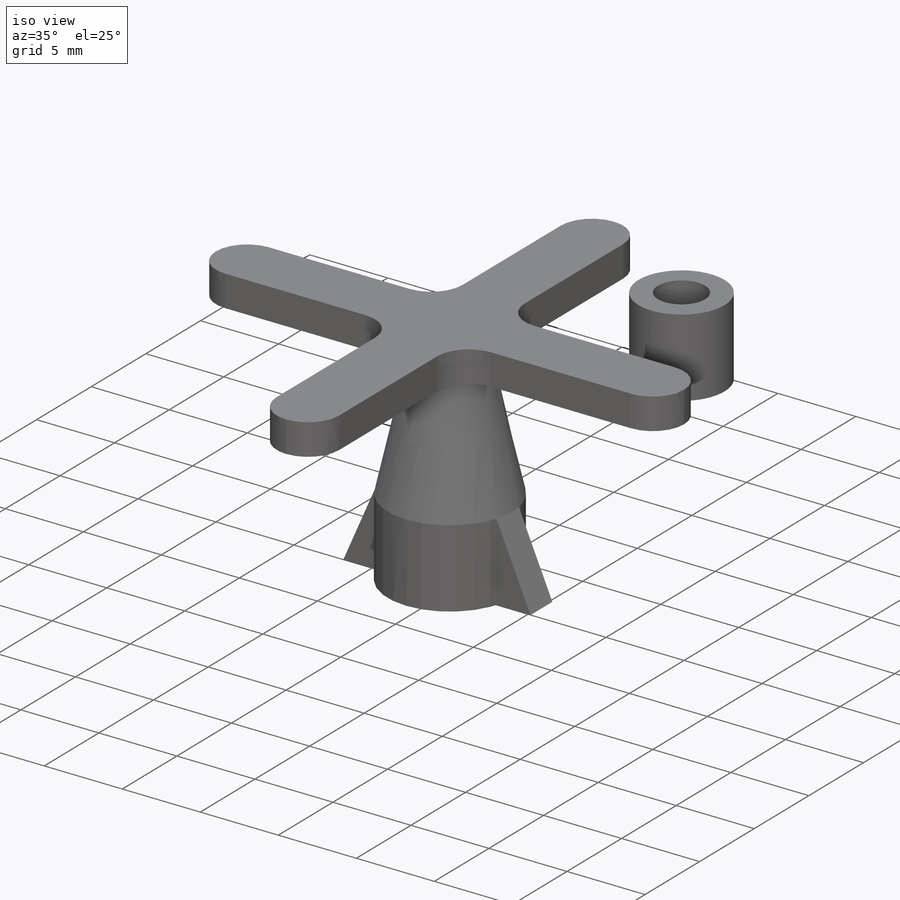
[diagram: iso view]
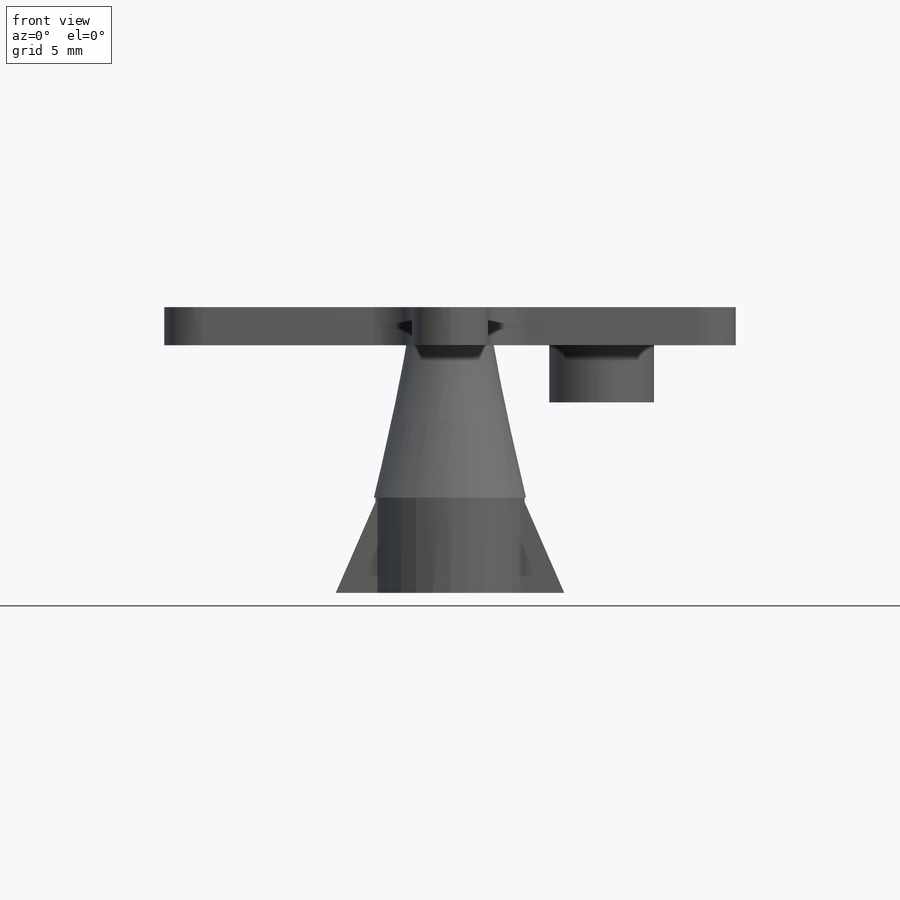
[diagram: front view]
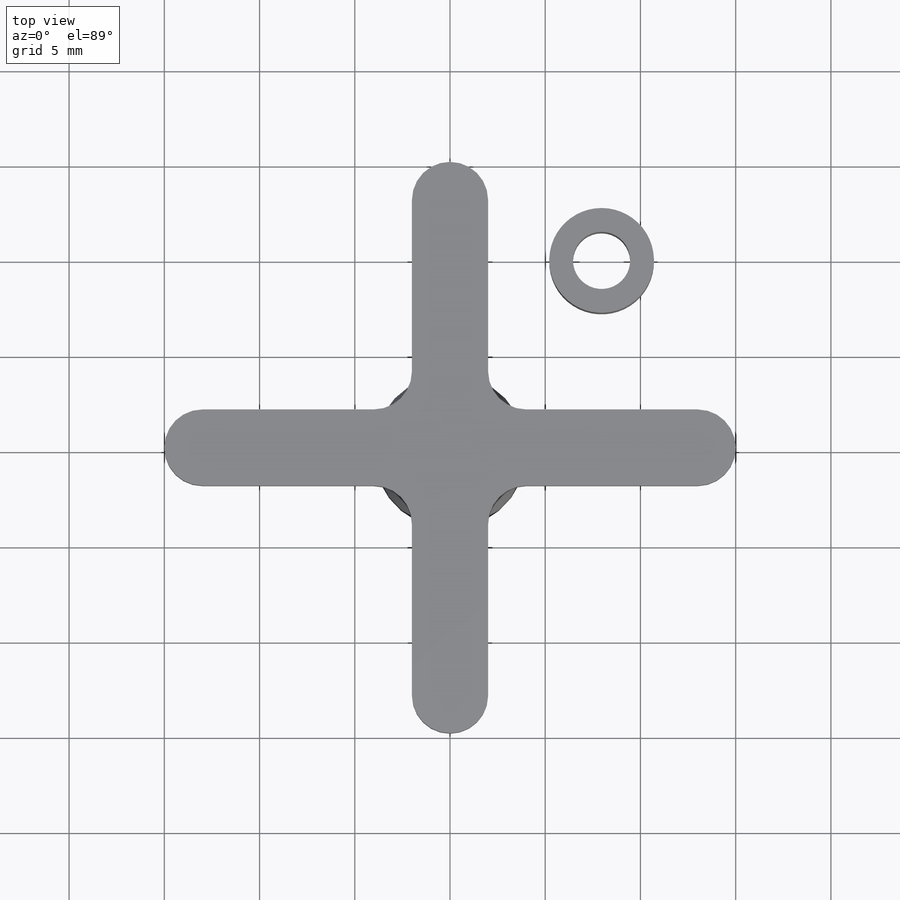
[diagram: top view]
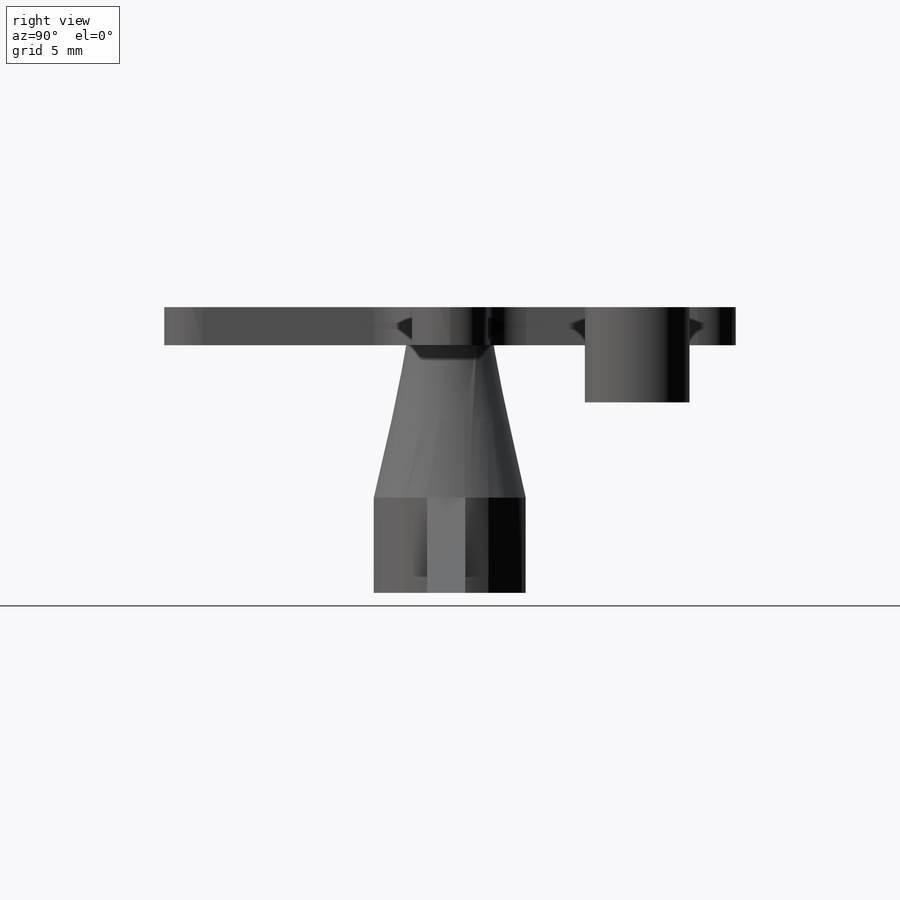
[diagram: right view]
SOLIDWORKS PART (.sldprt)
format: sldprt  version: not decoded by parser v0  size: 532,480 bytes
history: native  units: mm
features: sketch x28, extrude x9, cut_extrude x8, sweep x4, plane x3, fillet x3, material x1 (+9 scaffold rows collapsed)
feature tree (65):
  scaffold x9  (default folders/planes/origin — collapsed)
  material  "材质 <未指定>"
  plane  "前视基准面"
  plane  "上视基准面"
  plane  "右视基准面"
  sketch  "草图1"  dims[D1=4.0mm D2=4.0mm]
  extrude  "凸台-拉伸2"  Depth=10mm
  sketch  "草图2"  dims[D1=8.0mm]
  sketch  "草图3"  dims[D1=5.1mm]
  sketch  "草图4"  dims[D1=2.0mm]
  cut_extrude  "切除-拉伸1"  Depth=1.5mm
  sketch  "草图5"
  cut_extrude  "切除-拉伸2"  Depth=1.5mm
  sketch  "草图6"  dims[D1=2.0mm]
  sketch  "草图7"  dims[D1=5.1mm]
  sketch  "草图8"  dims[D1=1.5mm D2=2.55mm]
  sweep  "切除-扫描1"
  sketch  "草图9"
  extrude  "凸台-拉伸3"  Depth=5mm
  sketch  "草图11"  dims[c1.D1=6.0mm c1.D2=2.0mm c1.D3=2.55mm c1.D4=2.55mm c1.D5=6.0mm c1.D6=6.1187mm c2.D5=~0.800629mm c2.D6=2.0mm]
  extrude  "凸台-拉伸4"  Depth=5mm
  sketch  "草图13"  dims[D1=5.1mm D2=2.72mm]
  extrude  "凸台-拉伸6"  Depth=5mm
  sketch  "草图14"  dims[D1=5.5mm]
  cut_extrude  "切除-拉伸3"  Depth=5mm
  sketch  "草图15"  dims[D1=1.6mm]
  sketch  "草图16"
  sweep  "切除-扫描2"
  sketch  "草图17"  dims[D1=2.0mm]
  cut_extrude  "切除-拉伸4"  Depth=8mm
  sketch  "草图18"  dims[D1=3.0mm]
  cut_extrude  "切除-拉伸5"  Depth=8mm
  sketch  "草图19"  dims[D1=5.5mm]
  extrude  "凸台-拉伸7"  Depth=5mm
  sketch  "草图21"
  sketch  "草图22"
  sweep  "切除-扫描4"
  sketch  "草图23"
  sketch  "草图24"
  sweep  "切除-扫描5"
  sketch  "草图25"  dims[c1.D1=~23.75127mm c1.D2=~23.75127mm c2.D1=30.0mm c2.D2=4.0mm]
  extrude  "凸台-拉伸8"  Depth=2mm
  sketch  "草图26"  dims[D1=30.0mm D2=4.0mm]
  extrude  "凸台-拉伸9"  Depth=2mm
  fillet  "圆角3"  Radius=2mm
  fillet  "圆角4"  Radius=2mm
  sketch  "草图28"  dims[D1=3.0mm D2=5.5mm]
  extrude  "凸台-拉伸10"  Depth=10mm
  sketch  "草图29"
  cut_extrude  "切除-拉伸6"  Depth=5mm
  sketch  "草图30"
  cut_extrude  "切除-拉伸7"  Depth=5mm
  fillet  "圆角5"  Radius=2mm
  sketch  "草图31"
  extrude  "凸台-拉伸11"  Depth=5mm
  sketch  "草图32"
  cut_extrude  "切除-拉伸8"  Depth=5mm
decode coverage: 37 of 52 modeling features carry decoded parameters
note: ~ marks probable driven/reference dimensions
summary: profile_refs inferred from adjacent sketches, not decoded
note: suppression state not decoded; provenance and decode notes live in map.json
